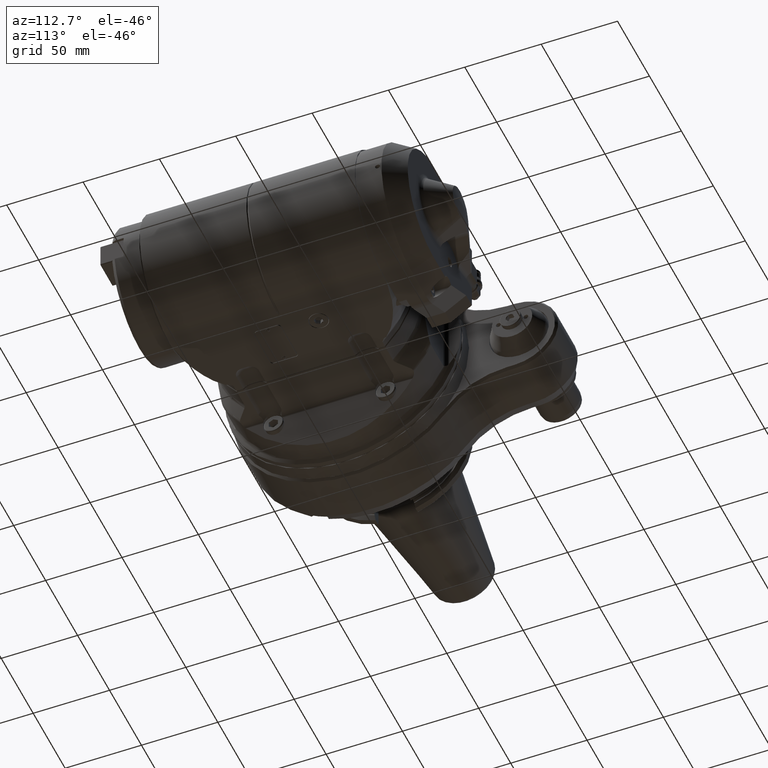
[diagram: clean part render]
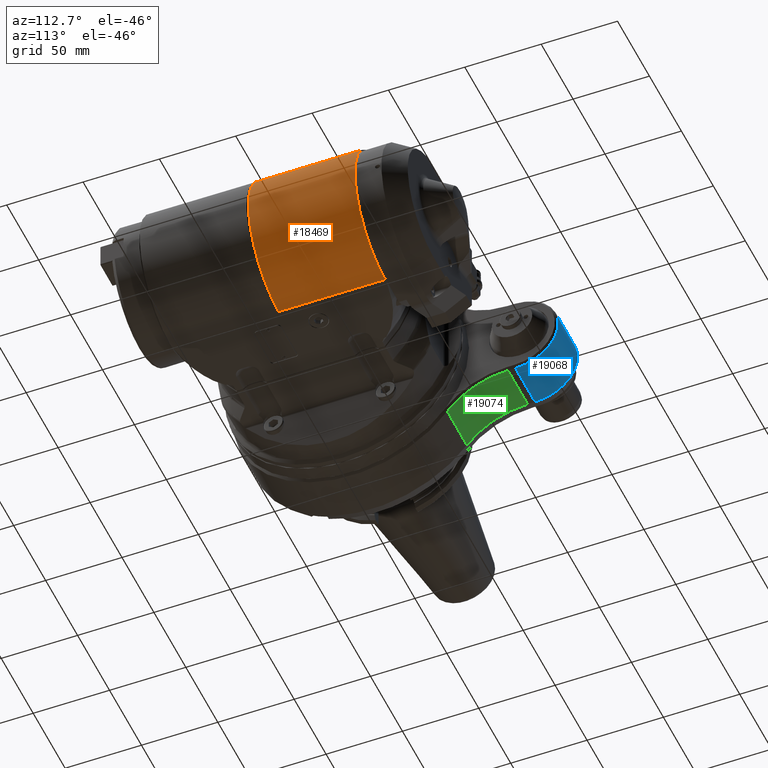
[diagram: same view with three faces highlighted in distinct colors, each labeled with its STEP entity id]
A machine part, auxiliary view with three faces highlighted in distinct colors.
Their STEP definitions:

[orange] entity #18469 — the highlighted cylindrical surface (partial cylindrical patch) has radius 47.5 mm, axis along (-0, 1, 0).
#629=B_SPLINE_CURVE_WITH_KNOTS('',3,(#28275,#28276,#28277,#28278),
 .UNSPECIFIED.,.F.,.F.,(4,4),(-2.38850375567304,-2.15803013913804),
 .UNSPECIFIED.);
#1632=FACE_OUTER_BOUND('',#2716,.T.);
#2716=EDGE_LOOP('',(#13151,#13152,#13153,#13154,#13155));
#3831=LINE('',#27309,#5291);
#3940=LINE('',#28187,#5400);
#5291=VECTOR('',#21668,69.83431457827);
#5400=VECTOR('',#22143,70.08908291478);
#6763=CIRCLE('',#19616,47.5);
#6808=CIRCLE('',#19737,47.5);
#7696=VERTEX_POINT('',#27306);
#7697=VERTEX_POINT('',#27308);
#7755=VERTEX_POINT('',#27636);
#7866=VERTEX_POINT('',#28185);
#7884=VERTEX_POINT('',#28274);
#9645=EDGE_CURVE('',#7697,#7696,#3831,.T.);
#9748=EDGE_CURVE('',#7755,#7696,#6763,.T.);
#9907=EDGE_CURVE('',#7755,#7866,#3940,.T.);
#9941=EDGE_CURVE('',#7866,#7884,#629,.T.);
#9942=EDGE_CURVE('',#7697,#7884,#6808,.T.);
#13151=ORIENTED_EDGE('',*,*,#9941,.T.);
#13152=ORIENTED_EDGE('',*,*,#9942,.F.);
#13153=ORIENTED_EDGE('',*,*,#9645,.T.);
#13154=ORIENTED_EDGE('',*,*,#9748,.F.);
#13155=ORIENTED_EDGE('',*,*,#9907,.T.);
#18077=CYLINDRICAL_SURFACE('',#19736,47.5);
#18469=ADVANCED_FACE('',(#1632),#18077,.T.);
#19616=AXIS2_PLACEMENT_3D('',#27638,#21866,#21867);
#19736=AXIS2_PLACEMENT_3D('',#28273,#22213,#22214);
#19737=AXIS2_PLACEMENT_3D('',#28279,#22215,#22216);
#21668=DIRECTION('',(-1.985751413415E-8,1.,1.546166037795E-9));
#21866=DIRECTION('center_axis',(0.,1.,4.660711712401E-9));
#21867=DIRECTION('ref_axis',(0.144712963981007,-4.61165155687221E-9,0.98947367729305));
#22143=DIRECTION('',(-2.642397513966E-8,-1.,1.396078319803E-9));
#22213=DIRECTION('center_axis',(0.,1.,4.660711712401E-9));
#22214=DIRECTION('ref_axis',(0.997364948527963,3.38123615483181E-10,-0.0725476357148454));
#22215=DIRECTION('center_axis',(0.,-1.,-4.660711712401E-9));
#22216=DIRECTION('ref_axis',(1.,0.,0.));
#27306=CARTESIAN_POINT('',(92.9999986124881,70.5000002213829,-47.4999998174548));
#27308=CARTESIAN_POINT('',(92.9999999995221,0.665685643099178,-47.4999999984496));
#27309=CARTESIAN_POINT('',(92.99999999922,0.6656856431145,-47.49999999845));
#27636=CARTESIAN_POINT('',(99.8738650491938,70.4999997809484,47.0000000721281));
#27638=CARTESIAN_POINT('Origin',(93.,70.5,3.285801757243E-7));
#28185=CARTESIAN_POINT('',(99.8738631773154,0.410916466128595,47.0000001876857));
#28187=CARTESIAN_POINT('',(99.87386504458,70.49999978095,47.00000005444));
#28273=CARTESIAN_POINT('Origin',(93.,-84.6000024,-3.942962220548E-7));
#28274=CARTESIAN_POINT('',(102.0634272834,0.665685202831,46.62729121627));
#28275=CARTESIAN_POINT('Ctrl Pts',(99.8738631889848,0.41091632976714,47.0000000536079));
#28276=CARTESIAN_POINT('Ctrl Pts',(100.581915611604,0.573329313103991,46.8964456824849));
#28277=CARTESIAN_POINT('Ctrl Pts',(101.309296657581,0.665685197364738,46.77387935878));
#28278=CARTESIAN_POINT('Ctrl Pts',(102.063427180433,0.665685202833321,46.6272912362955));
#28279=CARTESIAN_POINT('Origin',(93.,0.6656854201474,3.102567834455E-9));

[blue] entity #19068 — the highlighted cylindrical surface (partial cylindrical patch) has radius 28 mm, axis along (1, -0, 0).
#2231=FACE_OUTER_BOUND('',#3407,.T.);
#3407=EDGE_LOOP('',(#16471,#16472,#16473,#16474));
#4836=LINE('',#33094,#6296);
#4837=LINE('',#33097,#6297);
#6296=VECTOR('',#25287,30.70577136594);
#6297=VECTOR('',#25290,30.70577136594);
#7290=CIRCLE('',#20833,28.);
#7291=CIRCLE('',#20835,28.);
#9016=VERTEX_POINT('',#33067);
#9025=VERTEX_POINT('',#33089);
#9026=VERTEX_POINT('',#33093);
#9027=VERTEX_POINT('',#33095);
#11592=EDGE_CURVE('',#9025,#9016,#7290,.T.);
#11594=EDGE_CURVE('',#9025,#9026,#4836,.T.);
#11595=EDGE_CURVE('',#9027,#9026,#7291,.T.);
#11596=EDGE_CURVE('',#9027,#9016,#4837,.T.);
#16471=ORIENTED_EDGE('',*,*,#11592,.F.);
#16472=ORIENTED_EDGE('',*,*,#11594,.T.);
#16473=ORIENTED_EDGE('',*,*,#11595,.F.);
#16474=ORIENTED_EDGE('',*,*,#11596,.T.);
#18227=CYLINDRICAL_SURFACE('',#20834,28.);
#19068=ADVANCED_FACE('',(#2231),#18227,.T.);
#20833=AXIS2_PLACEMENT_3D('',#33090,#25282,#25283);
#20834=AXIS2_PLACEMENT_3D('',#33092,#25285,#25286);
#20835=AXIS2_PLACEMENT_3D('',#33096,#25288,#25289);
#25282=DIRECTION('center_axis',(1.,0.,0.));
#25283=DIRECTION('ref_axis',(0.,1.,0.));
#25285=DIRECTION('center_axis',(1.,0.,0.));
#25286=DIRECTION('ref_axis',(0.,0.,-1.));
#25287=DIRECTION('',(-1.,3.546915239674E-9,0.));
#25288=DIRECTION('center_axis',(-1.,0.,0.));
#25289=DIRECTION('ref_axis',(0.,0.,1.));
#25290=DIRECTION('',(1.,-7.40375493221E-9,0.));
#33067=CARTESIAN_POINT('',(75.5,107.,28.));
#33089=CARTESIAN_POINT('',(75.5,107.,-28.));
#33090=CARTESIAN_POINT('Origin',(75.5,107.,0.));
#33092=CARTESIAN_POINT('Origin',(43.,107.,0.));
#33093=CARTESIAN_POINT('',(44.79422863406,107.0000001089,-28.));
#33094=CARTESIAN_POINT('',(75.5,107.,-28.));
#33095=CARTESIAN_POINT('',(44.79422863406,107.0000002273,28.));
#33096=CARTESIAN_POINT('Origin',(44.79422863406,107.,0.));
#33097=CARTESIAN_POINT('',(44.79422863406,107.0000002273,28.));

[green] entity #19074 — the highlighted cylindrical surface (partial cylindrical patch) has radius 50 mm, axis along (-1, 0, -0).
#2237=FACE_OUTER_BOUND('',#3413,.T.);
#3413=EDGE_LOOP('',(#16495,#16496,#16497,#16498));
#4843=LINE('',#33114,#6303);
#4844=LINE('',#33115,#6304);
#6303=VECTOR('',#25312,30.70577136594);
#6304=VECTOR('',#25313,30.70577136594);
#7292=CIRCLE('',#20841,50.);
#7293=CIRCLE('',#20843,50.);
#9008=VERTEX_POINT('',#33043);
#9028=VERTEX_POINT('',#33105);
#9029=VERTEX_POINT('',#33111);
#9030=VERTEX_POINT('',#33112);
#11602=EDGE_CURVE('',#9028,#9008,#7292,.T.);
#11603=EDGE_CURVE('',#9029,#9030,#7293,.T.);
#11604=EDGE_CURVE('',#9029,#9008,#4843,.T.);
#11605=EDGE_CURVE('',#9028,#9030,#4844,.T.);
#16495=ORIENTED_EDGE('',*,*,#11603,.F.);
#16496=ORIENTED_EDGE('',*,*,#11604,.T.);
#16497=ORIENTED_EDGE('',*,*,#11602,.F.);
#16498=ORIENTED_EDGE('',*,*,#11605,.T.);
#18228=CYLINDRICAL_SURFACE('',#20842,50.);
#19074=ADVANCED_FACE('',(#2237),#18228,.F.);
#20841=AXIS2_PLACEMENT_3D('',#33109,#25306,#25307);
#20842=AXIS2_PLACEMENT_3D('',#33110,#25308,#25309);
#20843=AXIS2_PLACEMENT_3D('',#33113,#25310,#25311);
#25306=DIRECTION('center_axis',(1.,0.,0.));
#25307=DIRECTION('ref_axis',(0.,0.,1.));
#25308=DIRECTION('center_axis',(-1.,0.,0.));
#25309=DIRECTION('ref_axis',(0.,0.,1.));
#25310=DIRECTION('center_axis',(-1.,0.,0.));
#25311=DIRECTION('ref_axis',(0.,-0.794698858844918,0.607003891050614));
#25312=DIRECTION('',(-1.,-8.738361559444E-10,-1.144040404876E-9));
#25313=DIRECTION('',(1.,1.270333941404E-8,0.));
#33043=CARTESIAN_POINT('',(44.79422863406,62.3838603925,-47.6498054826));
#33105=CARTESIAN_POINT('',(44.79422863406,102.1188029715,-28.));
#33109=CARTESIAN_POINT('Origin',(44.79422863406,102.1188033616,-78.));
#33110=CARTESIAN_POINT('Origin',(43.,102.1188033616,-78.));
#33111=CARTESIAN_POINT('',(75.5,62.38386041933,-47.64980544747));
#33112=CARTESIAN_POINT('',(75.5,102.1188033616,-28.));
#33113=CARTESIAN_POINT('Origin',(75.5,102.1188033616,-78.));
#33114=CARTESIAN_POINT('',(75.5,62.38386041933,-47.64980544747));
#33115=CARTESIAN_POINT('',(44.79422863406,102.1188029715,-28.));